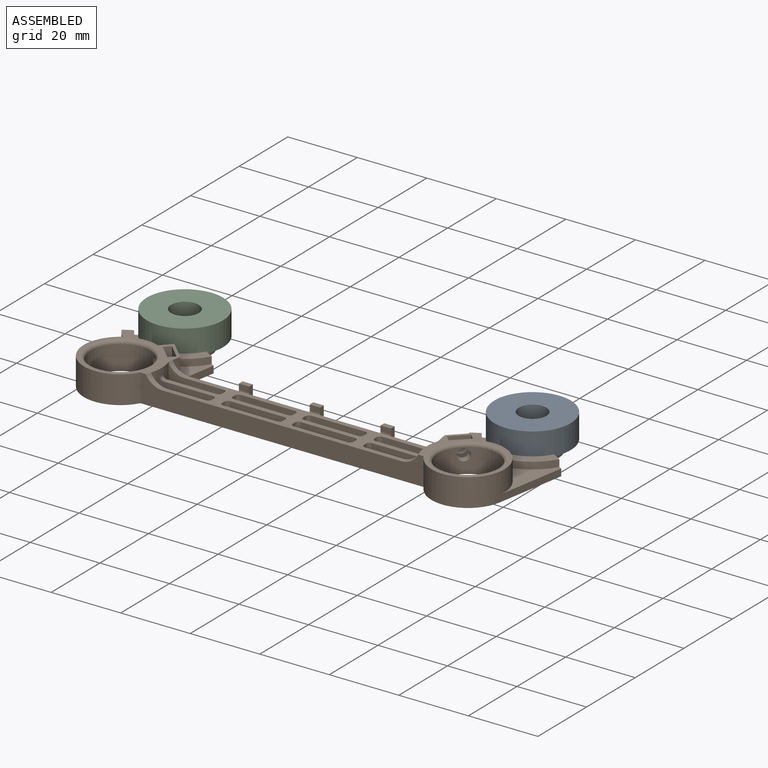
[diagram: assembled view]
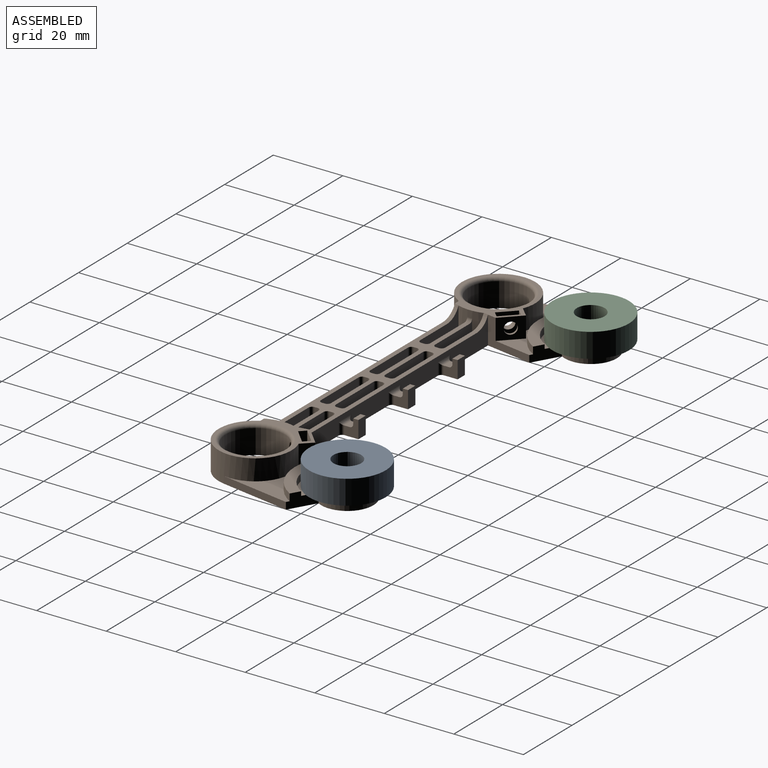
[diagram: assembled view, second angle]
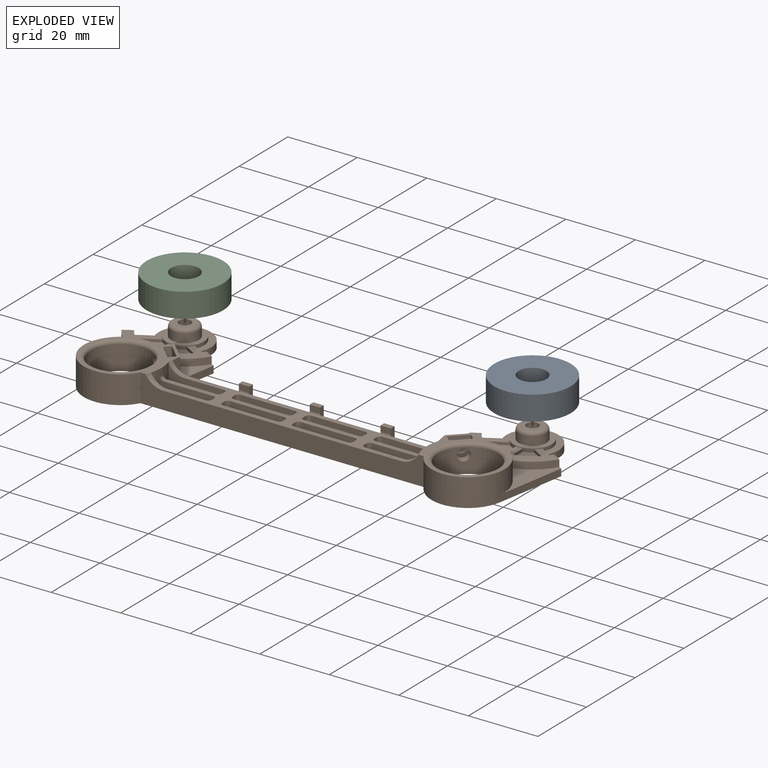
[diagram: exploded view]
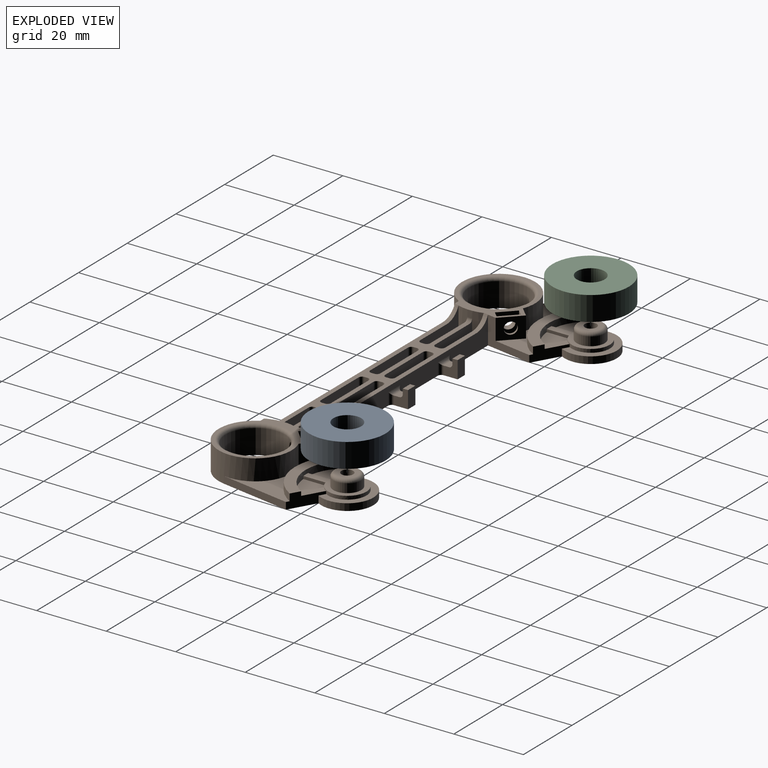
[diagram: exploded view, second angle]
ASSEMBLY  parts=3 mates=2
PART A: 4 faces, bbox 22x22x7 mm
  f0: cylinder r=11mm len=22mm, axis (0,0,-1), area 483.8mm2, adj f2,f3
  f1: cylinder r=4mm len=8mm, axis (0,0,-1), area 175.9mm2, adj f2,f3
  f2: plane 22x22mm, normal (0,0,1), area 329.9mm2, adj f0,f1
  f3: plane 22x22mm, normal (0,0,-1), area 329.9mm2, adj f0,f1
PART B: 186 faces, bbox 127.8x45.1x10.1 mm
  f0: cylinder r=5.5mm len=11mm, axis (0,0,-1), area 29.7mm2, adj f1,f3,f4,f23,f60,f62,f88,f89
  f1: plane 8.25x7.66mm, normal (0,0,1), area 39.9mm2, adj f0,f5,f88,f96
  f2: plane 20.78x12.84mm, normal (0,0,1), area 76.7mm2, adj f14,f16,f28,f60,f93
  f3: plane 15x11.25mm, normal (0,0,1), area 54.5mm2, adj f0,f60,f61,f62
  f4: plane 8.25x7.66mm, normal (0,0,1), area 39.9mm2, adj f0,f5,f90,f95
  f5: cylinder r=12mm len=20.78mm, axis (0,0,-1), area 45.4mm2, adj f1,f4,f22,f60,f62,f88,f89,f90
  f6: plane 15.77x5.85mm, normal (0,1,0), area 51mm2, adj f9,f11,f19,f73,f84
  f7: plane 3x0.9mm, normal (1,0,0), area 2.7mm2, adj f19,f43,f80,f87
  f8: plane 15.84x6.07mm, normal (0,-1,0), area 51.3mm2, adj f9,f10,f19,f74,f77
  f9: cylinder r=11.9mm len=7.34mm, axis (0,0,-1), area 38.3mm2, adj f6,f8,f10,f11,f35,f65,f72,f73
  f10: plane 16.77x2.9mm, normal (0,0,1), area 47.3mm2, adj f8,f9,f65,f66,f76,f77
  f11: plane 16.77x2.9mm, normal (0,0,1), area 47.3mm2, adj f6,f9,f71,f72,f84,f85
  f12: plane 17.48x2.9mm, normal (0,0,1), area 49.8mm2, adj f40,f41,f69,f70,f81,f82,f83,f86
  f13: plane 12.84x11.51mm, normal (0,0,1), area 44.1mm2, adj f14,f15,f28,f32,f33,f62,f94
  f14: cylinder r=15mm len=25.98mm, axis (0,0,-1), area 61.2mm2, adj f2,f13,f22,f60,f62,f92,f93,f94
  f15: plane 13.51x8mm, normal (-0.99,0.17,0), area 42.6mm2, adj f13,f21,f26,f33,f35,f62
  f16: plane 20.29x3.5mm, normal (0.99,0.17,0), area 41.2mm2, adj f2,f21,f28,f60
  f17: plane 3x1.5mm, normal (0,0,1), area 4.5mm2, adj f44,f53,f58,f137
  f18: plane 3x1.5mm, normal (0,0,1), area 4.5mm2, adj f46,f48,f54,f56
  f19: plane 74.24x10mm, normal (0,0,1), area 350.6mm2, adj f6,f7,f8,f26,f27,f40,f41,f42
  f20: cylinder r=8.5mm len=17mm, axis (0,0,-1), area 364.7mm2, adj f21,f38,f39
  f21: plane 127.69x44.5mm, normal (0,0,-1), area 2072.7mm2, adj f15,f16,f20,f26,f27,f28,f44,f45
  f22: plane 25.98x9mm, normal (0,0,1), area 84.8mm2, adj f5,f14,f60,f62
  f23: plane 11x11mm, normal (0,0,1), area 44.8mm2, adj f0,f24
  f24: cylinder r=4mm len=8mm, axis (0,0,-1), area 62.8mm2, adj f23,f63
  f25: plane 6x6mm, normal (0,0,1), area 19.2mm2, adj f63,f64
  f26: plane 76.97x8mm, normal (0,-1,0), area 340.1mm2, adj f15,f19,f21,f55,f56,f57,f58,f59
  f27: plane 81.63x8.09mm, normal (0,1,0), area 425.4mm2, adj f19,f21,f28,f35,f74,f121,f128,f162
  f28: cylinder r=10.5mm len=21mm, axis (0,0,-1), area 340.2mm2, adj f2,f13,f16,f21,f27,f32,f35,f92
  f29: plane 6x4.14mm, normal (-0.7,-0.71,0), area 25.7mm2, adj f30,f34,f35,f36,f38
  f30: plane 6x1.57mm, normal (0.71,-0.7,0), area 13.2mm2, adj f29,f31,f35,f36
  f31: plane 6x4.14mm, normal (0.7,0.71,0), area 25.7mm2, adj f30,f34,f35,f36,f37
  f32: plane 6x2.86mm, normal (0.71,-0.7,0), area 24mm2, adj f13,f28,f33,f35
  f33: plane 6x5.21mm, normal (-0.7,-0.71,0), area 34.7mm2, adj f13,f15,f32,f35,f37
  f34: plane 6x1.57mm, normal (-0.71,0.7,0), area 13.2mm2, adj f29,f31,f35,f36
  f35: plane 23.09x22.45mm, normal (0,0,1), area 92.5mm2, adj f9,f15,f27,f28,f29,f30,f31,f32
  f36: plane 5.68x5.63mm, normal (0,0,1), area 12.8mm2, adj f29,f30,f31,f34
  f37: cylinder r=1.7mm len=3.4mm, axis (-0.7,-0.71,0), area 8.5mm2, adj f31,f33
  f38: cylinder r=1.7mm len=4.15mm, axis (-0.7,-0.71,0), area 24.6mm2, adj f20,f29
  f39: torus R=9.5mm, axis (0,0,-1), area 87.5mm2, adj f20,f35
  f40: plane 15.48x3mm, normal (0,1,0), area 46.5mm2, adj f12,f19,f83,f86
  f41: plane 3x0.9mm, normal (1,0,0), area 2.7mm2, adj f12,f19,f81,f86
  f42: plane 15.48x3mm, normal (0,-1,0), area 46.5mm2, adj f19,f43,f78,f87
  f43: plane 17.48x2.9mm, normal (0,0,1), area 49.8mm2, adj f7,f42,f67,f68,f78,f79,f80,f87
  f44: plane 5x4mm, normal (1,0,0), area 14mm2, adj f17,f21,f45,f51,f52,f53,f59
  f45: plane 5x3mm, normal (0,-1,0), area 15mm2, adj f21,f44,f52,f137
  f46: plane 5x4mm, normal (1,0,0), area 14mm2, adj f18,f21,f47,f49,f50,f54,f57
  f47: plane 5x3mm, normal (0,-1,0), area 15mm2, adj f21,f46,f48,f50
  f48: plane 5x4mm, normal (-1,0,0), area 14mm2, adj f18,f21,f47,f49,f50,f54,f55
  f49: plane 3x1.5mm, normal (0,1,0), area 4.5mm2, adj f46,f48,f50,f54
  f50: plane 3x1.5mm, normal (0,0,1), area 4.5mm2, adj f46,f47,f48,f49
  f51: plane 3x1.5mm, normal (0,1,0), area 4.5mm2, adj f44,f52,f53,f137
  f52: plane 3x1.5mm, normal (0,0,1), area 4.5mm2, adj f44,f45,f51,f137
  f53: cylinder r=1mm len=3mm, axis (1,0,0), area 4.7mm2, adj f17,f44,f51,f137
  f54: cylinder r=1mm len=3mm, axis (1,0,0), area 4.7mm2, adj f18,f46,f48,f49
  f55: cylinder r=1mm len=3.5mm, axis (0,0,-1), area 4.5mm2, adj f21,f26,f48,f56
  f56: cylinder r=1mm len=5mm, axis (-1,0,0), area 5.9mm2, adj f18,f26,f55,f57
  f57: cylinder r=1mm len=3.5mm, axis (0,0,-1), area 4.5mm2, adj f21,f26,f46,f56
  f58: cylinder r=1mm len=5mm, axis (-1,0,0), area 5.9mm2, adj f17,f26,f59,f147
  f59: cylinder r=1mm len=3.5mm, axis (0,0,1), area 4.5mm2, adj f21,f26,f44,f58
  f60: plane 9.08x5.24mm, normal (0.5,-0.87,0), area 28.2mm2, adj f0,f2,f3,f5,f14,f16,f21,f22
  f61: cylinder r=7.5mm len=15mm, axis (0,0,1), area 62.8mm2, adj f3,f21,f60,f62
  f62: plane 9.08x5.24mm, normal (-0.5,-0.87,0), area 28.2mm2, adj f0,f3,f5,f13,f14,f15,f21,f22
  f63: torus R=3mm, axis (0,0,-1), area 35.9mm2, adj f24,f25
  f64: cylinder r=1.7mm len=6.5mm, axis (0,0,1), area 69.4mm2, adj f21,f25
  f65: plane 15.26x4.02mm, normal (0,1,0), area 45.9mm2, adj f9,f10,f19,f75,f76
  f66: plane 3x0.9mm, normal (1,0,0), area 2.7mm2, adj f10,f19,f76,f77
  f67: plane 3x0.9mm, normal (-1,0,0), area 2.7mm2, adj f19,f43,f78,f79
  f68: plane 15.48x3mm, normal (0,1,0), area 46.5mm2, adj f19,f43,f79,f80
  f69: plane 15.48x3mm, normal (0,-1,0), area 46.5mm2, adj f12,f19,f81,f82
  f70: plane 3x0.9mm, normal (-1,0,0), area 2.7mm2, adj f12,f19,f82,f83
  f71: plane 3x0.9mm, normal (1,0,0), area 2.7mm2, adj f11,f19,f84,f85
  f72: plane 15.26x4.02mm, normal (0,-1,0), area 45.9mm2, adj f9,f11,f19,f75,f85
  f73: cylinder r=5mm len=4.89mm, axis (-0.17,-0.99,0), area 8.2mm2, adj f6,f9,f19,f26,f35
  f74: torus R=16.48mm, axis (0,0,1), area 8.5mm2, adj f8,f19,f27,f35
  f75: torus R=12.9mm, axis (0,0,1), area 2.2mm2, adj f9,f19,f65,f72
  f76: cylinder r=1mm len=3mm, axis (0,0,1), area 4.7mm2, adj f10,f19,f65,f66
  f77: cylinder r=1mm len=3mm, axis (0,0,1), area 4.7mm2, adj f8,f10,f19,f66
  f78: cylinder r=1mm len=3mm, axis (0,0,-1), area 4.7mm2, adj f19,f42,f43,f67
  f79: cylinder r=1mm len=3mm, axis (0,0,-1), area 4.7mm2, adj f19,f43,f67,f68
  f80: cylinder r=1mm len=3mm, axis (0,0,-1), area 4.7mm2, adj f7,f19,f43,f68
  f81: cylinder r=1mm len=3mm, axis (0,0,1), area 4.7mm2, adj f12,f19,f41,f69
  f82: cylinder r=1mm len=3mm, axis (0,0,1), area 4.7mm2, adj f12,f19,f69,f70
  f83: cylinder r=1mm len=3mm, axis (0,0,1), area 4.7mm2, adj f12,f19,f40,f70
  f84: cylinder r=1mm len=3mm, axis (0,0,-1), area 4.7mm2, adj f6,f11,f19,f71
  f85: cylinder r=1mm len=3mm, axis (0,0,-1), area 4.7mm2, adj f11,f19,f71,f72
  f86: cylinder r=1mm len=3mm, axis (0,0,-1), area 4.7mm2, adj f12,f19,f40,f41
  f87: cylinder r=1mm len=3mm, axis (0,0,1), area 4.7mm2, adj f7,f19,f42,f43
  f88: plane 5.81x3.35mm, normal (-0.5,0.87,0), area 5.4mm2, adj f0,f1,f5,f89
  f89: plane 6.96x4.9mm, normal (0,0,1), area 13.1mm2, adj f0,f5,f60,f88
  f90: plane 5.81x3.35mm, normal (0.5,0.87,0), area 5.4mm2, adj f0,f4,f5,f91
  f91: plane 6.96x4.9mm, normal (0,0,1), area 13.1mm2, adj f0,f5,f62,f90
  f92: plane 2x1.08mm, normal (0,0,1), area 2.1mm2, adj f14,f28,f93,f94
  f93: plane 1.08x0.8mm, normal (1,0,0), area 0.9mm2, adj f2,f14,f28,f92
  f94: plane 1.08x0.8mm, normal (-1,0,0), area 0.9mm2, adj f13,f14,f28,f92
  f95: plane 6.55x0.8mm, normal (-1,0,0), area 5.2mm2, adj f0,f4,f5,f97
  f96: plane 6.55x0.8mm, normal (1,0,0), area 5.2mm2, adj f0,f1,f5,f97
  f97: plane 6.59x2mm, normal (0,0,1), area 13mm2, adj f0,f5,f95,f96
  f98: cylinder r=5.5mm len=11mm, axis (0,0,-1), area 29.7mm2, adj f99,f101,f102,f118,f148,f150,f176,f177
  f99: plane 8.25x7.66mm, normal (0,0,1), area 39.9mm2, adj f98,f103,f176,f184
  f100: plane 20.78x12.84mm, normal (0,0,1), area 76.7mm2, adj f112,f114,f121,f148,f181
  f101: plane 15x11.25mm, normal (0,0,1), area 54.5mm2, adj f98,f148,f149,f150
  f102: plane 8.25x7.66mm, normal (0,0,1), area 39.9mm2, adj f98,f103,f178,f183
  f103: cylinder r=12mm len=20.78mm, axis (0,0,-1), area 45.4mm2, adj f99,f102,f117,f148,f150,f176,f177,f178
  f104: plane 15.77x5.85mm, normal (0,1,0), area 51mm2, adj f19,f107,f109,f161,f172
  f105: plane 3x0.9mm, normal (-1,0,0), area 2.7mm2, adj f19,f136,f168,f175
  f106: plane 15.84x6.07mm, normal (0,-1,0), area 51.3mm2, adj f19,f107,f108,f162,f165
  f107: cylinder r=11.9mm len=7.34mm, axis (0,0,-1), area 38.3mm2, adj f104,f106,f108,f109,f128,f153,f160,f161
  f108: plane 16.77x2.9mm, normal (0,0,1), area 47.3mm2, adj f106,f107,f153,f154,f164,f165
  f109: plane 16.77x2.9mm, normal (0,0,1), area 47.3mm2, adj f104,f107,f159,f160,f172,f173
  f110: plane 17.48x2.9mm, normal (0,0,1), area 49.8mm2, adj f133,f134,f157,f158,f169,f170,f171,f174
  f111: plane 12.84x11.51mm, normal (0,0,1), area 44.1mm2, adj f112,f113,f121,f125,f126,f150,f182
  f112: cylinder r=15mm len=25.98mm, axis (0,0,-1), area 61.2mm2, adj f100,f111,f117,f148,f150,f180,f181,f182
  f113: plane 13.51x8mm, normal (0.99,0.17,0), area 42.6mm2, adj f21,f26,f111,f126,f128,f150
  f114: plane 20.29x3.5mm, normal (-0.99,0.17,0), area 41.2mm2, adj f21,f100,f121,f148
  f115: plane 3x1.5mm, normal (0,0,1), area 4.5mm2, adj f138,f140,f143,f145
  f116: cylinder r=8.5mm len=17mm, axis (0,0,-1), area 364.7mm2, adj f21,f131,f132
  f117: plane 25.98x9mm, normal (0,0,1), area 84.8mm2, adj f103,f112,f148,f150
  f118: plane 11x11mm, normal (0,0,1), area 44.8mm2, adj f98,f119
  f119: cylinder r=4mm len=8mm, axis (0,0,-1), area 62.8mm2, adj f118,f151
  f120: plane 6x6mm, normal (0,0,1), area 19.2mm2, adj f151,f152
  f121: cylinder r=10.5mm len=21mm, axis (0,0,-1), area 340.2mm2, adj f21,f27,f100,f111,f114,f125,f128,f180
  f122: plane 6x4.14mm, normal (0.7,-0.71,0), area 25.7mm2, adj f123,f127,f128,f129,f131
  f123: plane 6x1.57mm, normal (-0.71,-0.7,0), area 13.2mm2, adj f122,f124,f128,f129
  f124: plane 6x4.14mm, normal (-0.7,0.71,0), area 25.7mm2, adj f123,f127,f128,f129,f130
  f125: plane 6x2.86mm, normal (-0.71,-0.7,0), area 24mm2, adj f111,f121,f126,f128
  f126: plane 6x5.21mm, normal (0.7,-0.71,0), area 34.7mm2, adj f111,f113,f125,f128,f130
  f127: plane 6x1.57mm, normal (0.71,0.7,0), area 13.2mm2, adj f122,f124,f128,f129
  f128: plane 23.09x22.45mm, normal (0,0,1), area 92.5mm2, adj f27,f107,f113,f121,f122,f123,f124,f125
  f129: plane 5.68x5.63mm, normal (0,0,1), area 12.8mm2, adj f122,f123,f124,f127
  f130: cylinder r=1.7mm len=3.4mm, axis (0.7,-0.71,0), area 8.5mm2, adj f124,f126
  f131: cylinder r=1.7mm len=4.15mm, axis (0.7,-0.71,0), area 24.6mm2, adj f116,f122
  f132: torus R=9.5mm, axis (0,0,-1), area 87.5mm2, adj f116,f128
  f133: plane 15.48x3mm, normal (0,1,0), area 46.5mm2, adj f19,f110,f171,f174
  f134: plane 3x0.9mm, normal (-1,0,0), area 2.7mm2, adj f19,f110,f169,f174
  f135: plane 15.48x3mm, normal (0,-1,0), area 46.5mm2, adj f19,f136,f166,f175
  f136: plane 17.48x2.9mm, normal (0,0,1), area 49.8mm2, adj f105,f135,f155,f156,f166,f167,f168,f175
  f137: plane 5x4mm, normal (-1,0,0), area 14mm2, adj f17,f21,f45,f51,f52,f53,f147
  f138: plane 5x4mm, normal (-1,0,0), area 14mm2, adj f21,f115,f139,f141,f142,f143,f146
  f139: plane 5x3mm, normal (0,-1,0), area 15mm2, adj f21,f138,f140,f142
  f140: plane 5x4mm, normal (1,0,0), area 14mm2, adj f21,f115,f139,f141,f142,f143,f144
  f141: plane 3x1.5mm, normal (0,1,0), area 4.5mm2, adj f138,f140,f142,f143
  f142: plane 3x1.5mm, normal (0,0,1), area 4.5mm2, adj f138,f139,f140,f141
  f143: cylinder r=1mm len=3mm, axis (-1,0,0), area 4.7mm2, adj f115,f138,f140,f141
  f144: cylinder r=1mm len=3.5mm, axis (0,0,-1), area 4.5mm2, adj f21,f26,f140,f145
  f145: cylinder r=1mm len=5mm, axis (1,0,0), area 5.9mm2, adj f26,f115,f144,f146
  f146: cylinder r=1mm len=3.5mm, axis (0,0,-1), area 4.5mm2, adj f21,f26,f138,f145
  f147: cylinder r=1mm len=3.5mm, axis (0,0,1), area 4.5mm2, adj f21,f26,f58,f137
  f148: plane 9.08x5.24mm, normal (-0.5,-0.87,0), area 28.2mm2, adj f21,f98,f100,f101,f103,f112,f114,f117
  f149: cylinder r=7.5mm len=15mm, axis (0,0,1), area 62.8mm2, adj f21,f101,f148,f150
  f150: plane 9.08x5.24mm, normal (0.5,-0.87,0), area 28.2mm2, adj f21,f98,f101,f103,f111,f112,f113,f117
  f151: torus R=3mm, axis (0,0,-1), area 35.9mm2, adj f119,f120
  f152: cylinder r=1.7mm len=6.5mm, axis (0,0,1), area 69.4mm2, adj f21,f120
  f153: plane 15.26x4.02mm, normal (0,1,0), area 45.9mm2, adj f19,f107,f108,f163,f164
  f154: plane 3x0.9mm, normal (-1,0,0), area 2.7mm2, adj f19,f108,f164,f165
  f155: plane 3x0.9mm, normal (1,0,0), area 2.7mm2, adj f19,f136,f166,f167
  f156: plane 15.48x3mm, normal (0,1,0), area 46.5mm2, adj f19,f136,f167,f168
  f157: plane 15.48x3mm, normal (0,-1,0), area 46.5mm2, adj f19,f110,f169,f170
  f158: plane 3x0.9mm, normal (1,0,0), area 2.7mm2, adj f19,f110,f170,f171
  f159: plane 3x0.9mm, normal (-1,0,0), area 2.7mm2, adj f19,f109,f172,f173
  f160: plane 15.26x4.02mm, normal (0,-1,0), area 45.9mm2, adj f19,f107,f109,f163,f173
  f161: cylinder r=5mm len=4.89mm, axis (0.17,-0.99,0), area 8.2mm2, adj f19,f26,f104,f107,f128
  f162: torus R=16.48mm, axis (0,0,1), area 8.5mm2, adj f19,f27,f106,f128
  f163: torus R=12.9mm, axis (0,0,1), area 2.2mm2, adj f19,f107,f153,f160
  f164: cylinder r=1mm len=3mm, axis (0,0,1), area 4.7mm2, adj f19,f108,f153,f154
  f165: cylinder r=1mm len=3mm, axis (0,0,1), area 4.7mm2, adj f19,f106,f108,f154
  f166: cylinder r=1mm len=3mm, axis (0,0,-1), area 4.7mm2, adj f19,f135,f136,f155
  f167: cylinder r=1mm len=3mm, axis (0,0,-1), area 4.7mm2, adj f19,f136,f155,f156
  f168: cylinder r=1mm len=3mm, axis (0,0,-1), area 4.7mm2, adj f19,f105,f136,f156
  f169: cylinder r=1mm len=3mm, axis (0,0,1), area 4.7mm2, adj f19,f110,f134,f157
  f170: cylinder r=1mm len=3mm, axis (0,0,1), area 4.7mm2, adj f19,f110,f157,f158
  f171: cylinder r=1mm len=3mm, axis (0,0,1), area 4.7mm2, adj f19,f110,f133,f158
  f172: cylinder r=1mm len=3mm, axis (0,0,-1), area 4.7mm2, adj f19,f104,f109,f159
  f173: cylinder r=1mm len=3mm, axis (0,0,-1), area 4.7mm2, adj f19,f109,f159,f160
  f174: cylinder r=1mm len=3mm, axis (0,0,-1), area 4.7mm2, adj f19,f110,f133,f134
  f175: cylinder r=1mm len=3mm, axis (0,0,1), area 4.7mm2, adj f19,f105,f135,f136
  f176: plane 5.81x3.35mm, normal (0.5,0.87,0), area 5.4mm2, adj f98,f99,f103,f177
  f177: plane 6.96x4.9mm, normal (0,0,1), area 13.1mm2, adj f98,f103,f148,f176
  f178: plane 5.81x3.35mm, normal (-0.5,0.87,0), area 5.4mm2, adj f98,f102,f103,f179
  f179: plane 6.96x4.9mm, normal (0,0,1), area 13.1mm2, adj f98,f103,f150,f178
  f180: plane 2x1.08mm, normal (0,0,1), area 2.1mm2, adj f112,f121,f181,f182
  f181: plane 1.08x0.8mm, normal (-1,0,0), area 0.9mm2, adj f100,f112,f121,f180
  f182: plane 1.08x0.8mm, normal (1,0,0), area 0.9mm2, adj f111,f112,f121,f180
  f183: plane 6.55x0.8mm, normal (1,0,0), area 5.2mm2, adj f98,f102,f103,f185
  f184: plane 6.55x0.8mm, normal (-1,0,0), area 5.2mm2, adj f98,f99,f103,f185
  f185: plane 6.59x2mm, normal (0,0,1), area 13mm2, adj f98,f103,f183,f184
PART C: same geometry as A
PLACE A rot(axis=(0,0,-1),34.7deg) t=(50,26.35,93.24)mm
PLACE B rot(axis=(0,0,-1),180deg) t=(-50,26.35,93.24)mm
PLACE C t=(-50,26.35,93.24)mm
MATE revolute B.f98 <-> A.f0  axis (0,0,-1) through (50,26.35,96.24)mm
MATE revolute B.f0 <-> C.f0  axis (0,0,-1) through (-50,26.35,96.24)mm
